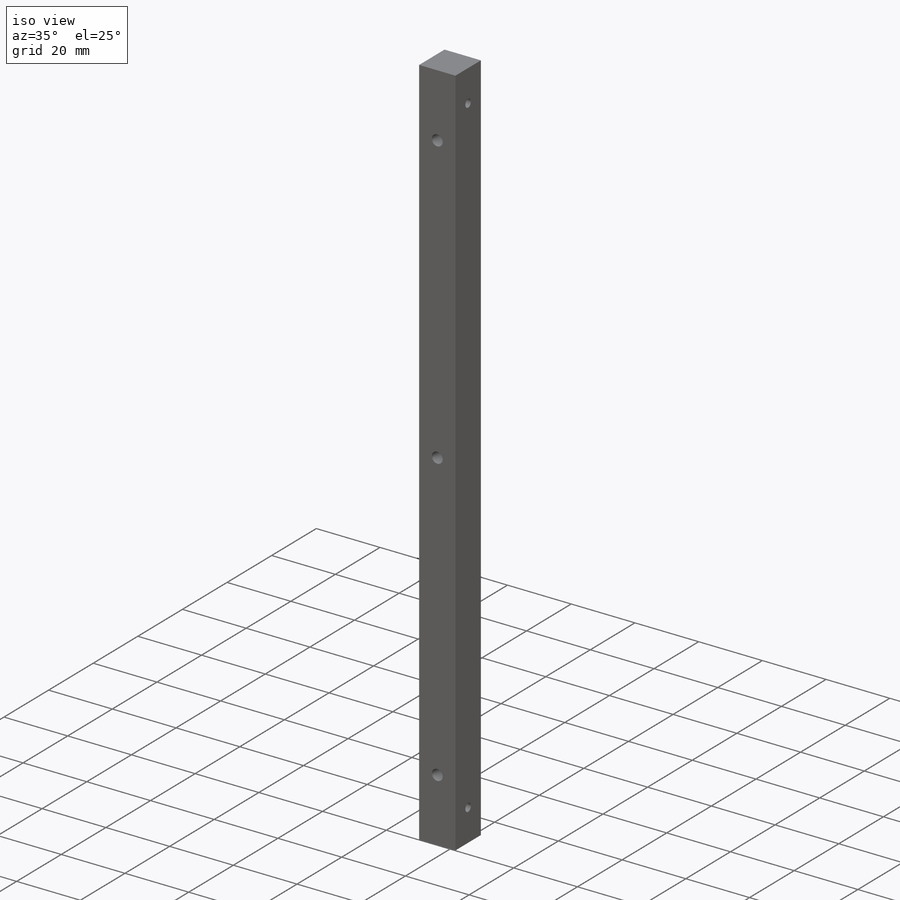
[diagram: iso view]
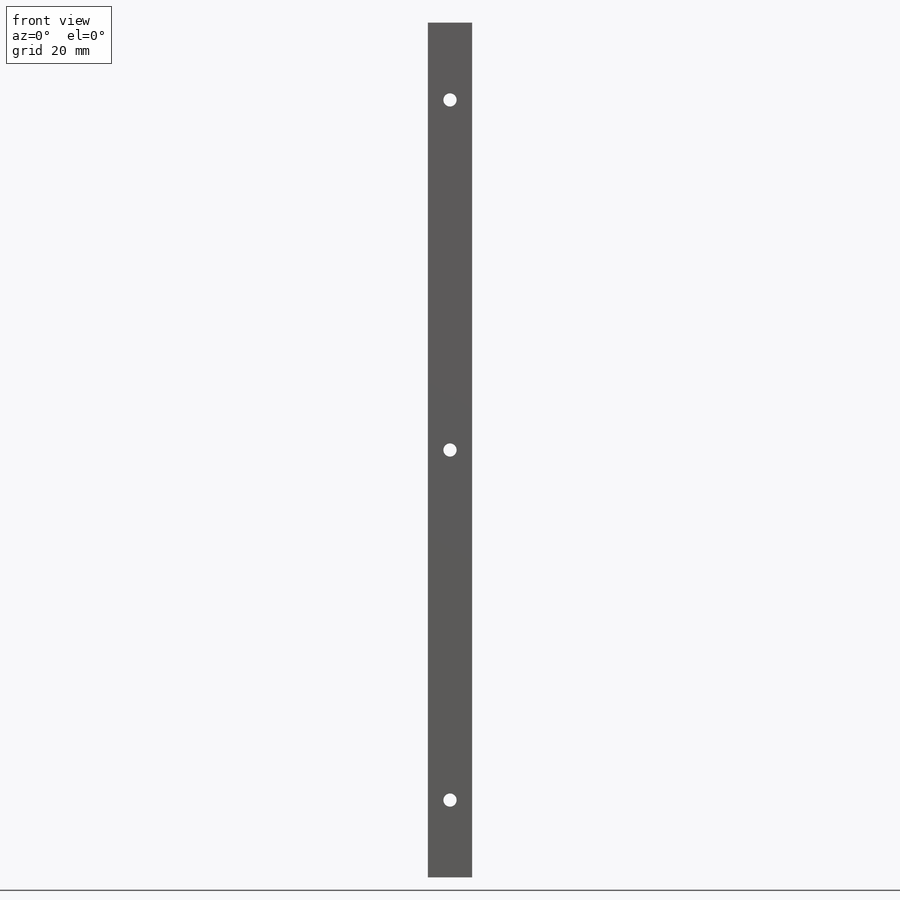
[diagram: front view]
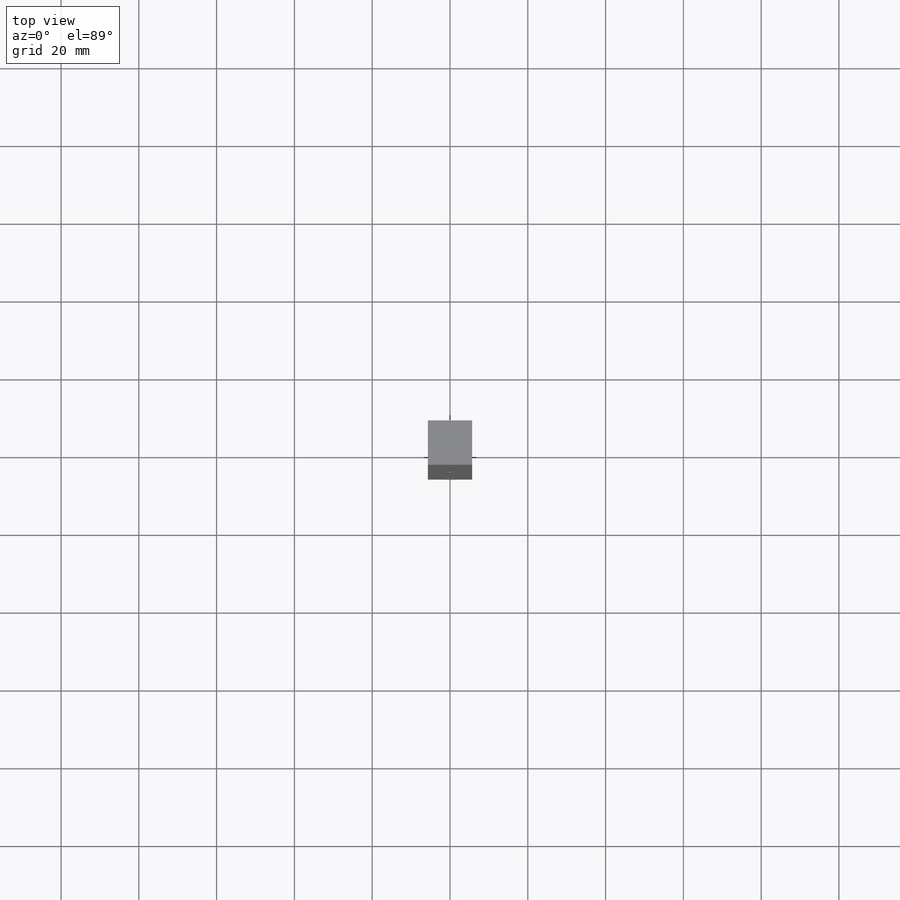
[diagram: top view]
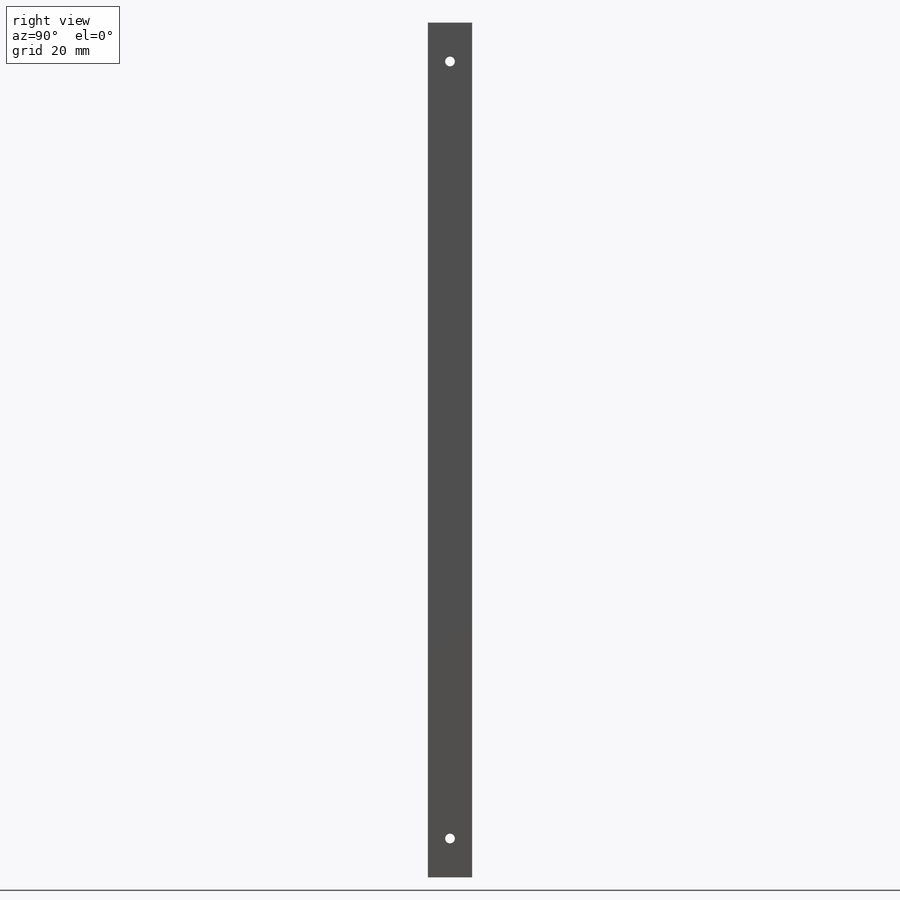
[diagram: right view]
SOLIDWORKS PART (.sldprt)
format: sldprt  version: not decoded by parser v0  size: 383,488 bytes
history: native  units: mm
features: sketch x7, plane x3, hole x2, thread x2, material x1, extrude x1 (+13 scaffold rows collapsed)
feature tree (29):
  scaffold x13  (default folders/planes/origin — collapsed)
  material  "Matériau <non spécifié>"
  plane  "Plan de face"
  plane  "Plan de dessus"
  plane  "Plan de droite"
  sketch  "Esquisse1"  dims[D1=11.4mm D2=11.4mm]
  extrude  "Boss.-Extru.1"  Depth=219.772mm
  sketch  "Esquisse2"  dims[D1=5.7mm D2=5.7mm D3=5.7mm D4=90.0mm D5=90.0mm D6=109.885mm]
  hole  "Dégagement M31"  Diameter=3.4mm Depth=11.4mm
  sketch  "Esquisse4"
  sketch  "Esquisse3"  dims[hole-wizard template sketch: 60 standard entries collapsed; hole parameters kept: c18.Profondeur du perçage jusqu'au prochain=11.4mm]
  sketch  "Esquisse5"  dims[D1=10.0mm D2=5.7mm D3=5.7mm D4=10.0mm]
  hole  "Trou taraudé M31"  [1 undecoded]
  sketch  "Esquisse7"
  thread  "Filetage de perçage1"  Diameter=3mm  [1 undecoded]
  thread  "Filetage de perçage2"  Diameter=3mm  [1 undecoded]
  sketch  "Esquisse6"  dims[hole-wizard template sketch: 60 standard entries collapsed; hole parameters kept: c18.Profondeur du trou pour taraudage jusqu'au prochain=11.4mm]
decode coverage: 9 of 12 modeling features carry decoded parameters
note: ~ marks probable driven/reference dimensions
note: 3 parameter values undecoded
note: suppression state not decoded; provenance and decode notes live in map.json
